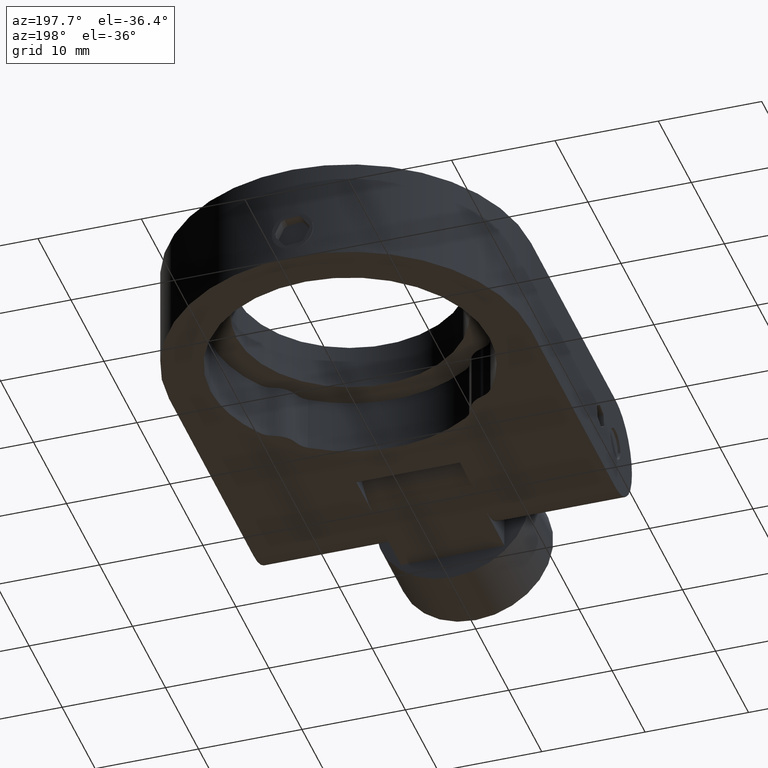
[diagram: clean part render]
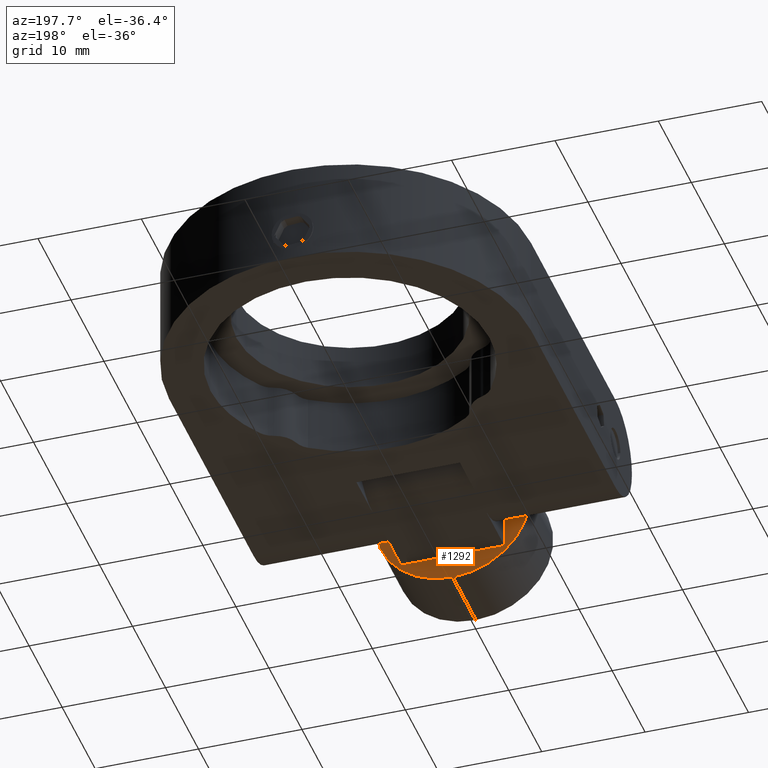
[diagram: same view with one face highlighted and labeled with its STEP entity id]
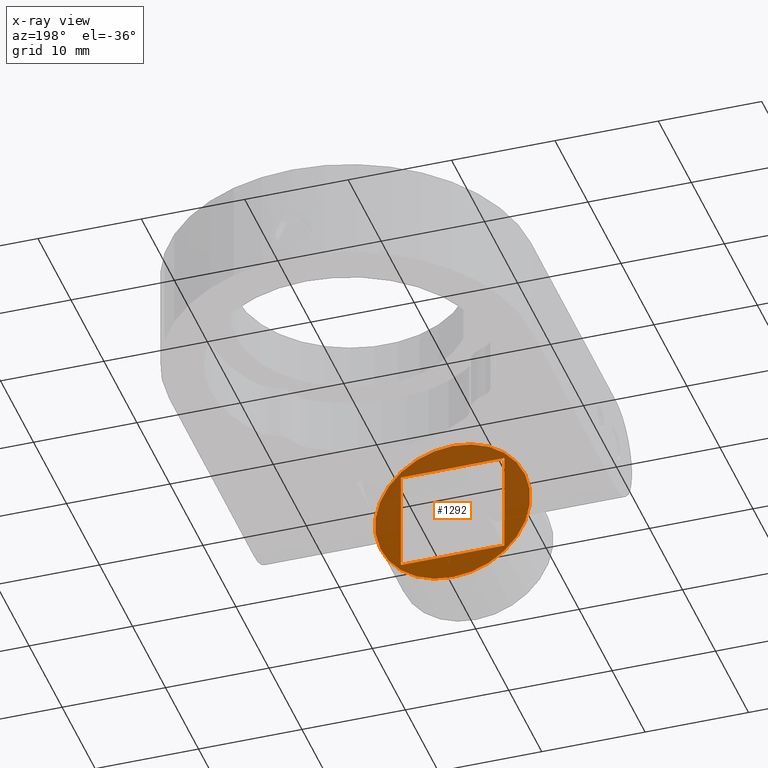
[diagram: x-ray of the same camera — body ghosted, the highlighted face saturated]
A machine part, auxiliary view. The second image highlights one B-rep face of the part: STEP entity #1292.
The next image is the same camera in x-ray: the body ghosted, the highlighted face saturated — about 57% of this face is hidden behind the body in this view.
In plain terms, the highlighted planar face has unit normal (0, 1, 0).
Its self-contained STEP definition (entity closure, byte-faithful):
#102 = FACE_OUTER_BOUND ( 'NONE', #2097, .T. ) ;
#103 = DIRECTION ( 'NONE',  ( 0.0000000000000000000, 1.000000000000000000, 0.0000000000000000000 ) ) ;
#143 = EDGE_CURVE ( 'NONE', #3110, #931, #605, .T. ) ;
#360 = ORIENTED_EDGE ( 'NONE', *, *, #2868, .F. ) ;
#549 = CARTESIAN_POINT ( 'NONE',  ( 5.000000000000000900, 7.000000000000000000, 4.999999999999998200 ) ) ;
#599 = DIRECTION ( 'NONE',  ( 1.000000000000000000, 0.0000000000000000000, -1.734723475976807100E-016 ) ) ;
#605 = LINE ( 'NONE', #2472, #2390 ) ;
#606 = EDGE_LOOP ( 'NONE', ( #2183, #2251, #2723, #360 ) ) ;
#680 = CARTESIAN_POINT ( 'NONE',  ( -4.999999999999999100, 7.000000000000000000, 5.000000000000000000 ) ) ;
#733 = DIRECTION ( 'NONE',  ( 0.0000000000000000000, 0.0000000000000000000, -1.000000000000000000 ) ) ;
#798 = FACE_BOUND ( 'NONE', #606, .T. ) ;
#845 = EDGE_CURVE ( 'NONE', #3424, #2325, #2670, .T. ) ;
#846 = CARTESIAN_POINT ( 'NONE',  ( 5.000000000000000900, 7.000000000000000000, 4.999999999999998200 ) ) ;
#893 = CARTESIAN_POINT ( 'NONE',  ( 0.0000000000000000000, 7.000000000000001800, 7.499999999999998200 ) ) ;
#931 = VERTEX_POINT ( 'NONE', #2168 ) ;
#1013 = DIRECTION ( 'NONE',  ( 0.0000000000000000000, 1.000000000000000000, -2.220446049250313600E-016 ) ) ;
#1046 = LINE ( 'NONE', #680, #3332 ) ;
#1051 = DIRECTION ( 'NONE',  ( -1.000000000000000000, 0.0000000000000000000, 0.0000000000000000000 ) ) ;
#1231 = DIRECTION ( 'NONE',  ( 1.734723475976806800E-016, -0.0000000000000000000, 1.000000000000000000 ) ) ;
#1292 = ADVANCED_FACE ( 'NONE', ( #102, #798 ), #3069, .T. ) ;
#1295 = CARTESIAN_POINT ( 'NONE',  ( 0.0000000000000000000, 7.000000000000000000, -1.554312234475219600E-015 ) ) ;
#1650 = CARTESIAN_POINT ( 'NONE',  ( 5.000000000000000900, 7.000000000000000000, -5.000000000000001800 ) ) ;
#1686 = AXIS2_PLACEMENT_3D ( 'NONE', #2780, #2181, #733 ) ;
#1714 = CARTESIAN_POINT ( 'NONE',  ( -9.184850993605149900E-016, 6.999999999999998200, -7.500000000000002700 ) ) ;
#1865 = DIRECTION ( 'NONE',  ( 0.0000000000000000000, 0.0000000000000000000, -1.000000000000000000 ) ) ;
#1974 = CARTESIAN_POINT ( 'NONE',  ( -5.000000000000000900, 7.000000000000000000, -5.000000000000001800 ) ) ;
#2085 = CIRCLE ( 'NONE', #1686, 7.500000000000000000 ) ;
#2097 = EDGE_LOOP ( 'NONE', ( #2407, #2300 ) ) ;
#2101 = EDGE_CURVE ( 'NONE', #2325, #3424, #2085, .T. ) ;
#2162 = EDGE_CURVE ( 'NONE', #2264, #3110, #3607, .T. ) ;
#2168 = CARTESIAN_POINT ( 'NONE',  ( 5.000000000000000900, 7.000000000000000000, -5.000000000000001800 ) ) ;
#2181 = DIRECTION ( 'NONE',  ( 0.0000000000000000000, 1.000000000000000000, -2.220446049250313600E-016 ) ) ;
#2183 = ORIENTED_EDGE ( 'NONE', *, *, #3004, .F. ) ;
#2251 = ORIENTED_EDGE ( 'NONE', *, *, #143, .F. ) ;
#2264 = VERTEX_POINT ( 'NONE', #2315 ) ;
#2300 = ORIENTED_EDGE ( 'NONE', *, *, #845, .T. ) ;
#2315 = CARTESIAN_POINT ( 'NONE',  ( -4.999999999999999100, 7.000000000000000000, 5.000000000000000000 ) ) ;
#2325 = VERTEX_POINT ( 'NONE', #893 ) ;
#2390 = VECTOR ( 'NONE', #2501, 1000.000000000000000 ) ;
#2406 = LINE ( 'NONE', #1650, #3602 ) ;
#2407 = ORIENTED_EDGE ( 'NONE', *, *, #2101, .T. ) ;
#2472 = CARTESIAN_POINT ( 'NONE',  ( 5.000000000000000900, 7.000000000000000000, 4.999999999999998200 ) ) ;
#2476 = CARTESIAN_POINT ( 'NONE',  ( 0.0000000000000000000, 7.000000000000000000, -1.554312234475219600E-015 ) ) ;
#2501 = DIRECTION ( 'NONE',  ( 0.0000000000000000000, 0.0000000000000000000, -1.000000000000000000 ) ) ;
#2670 = CIRCLE ( 'NONE', #3174, 7.500000000000000000 ) ;
#2723 = ORIENTED_EDGE ( 'NONE', *, *, #2162, .F. ) ;
#2780 = CARTESIAN_POINT ( 'NONE',  ( 0.0000000000000000000, 7.000000000000000000, -1.554312234475219600E-015 ) ) ;
#2790 = VECTOR ( 'NONE', #599, 1000.000000000000000 ) ;
#2868 = EDGE_CURVE ( 'NONE', #3582, #2264, #1046, .T. ) ;
#3004 = EDGE_CURVE ( 'NONE', #931, #3582, #2406, .T. ) ;
#3069 = PLANE ( 'NONE',  #3094 ) ;
#3094 = AXIS2_PLACEMENT_3D ( 'NONE', #1295, #103, #3661 ) ;
#3110 = VERTEX_POINT ( 'NONE', #846 ) ;
#3174 = AXIS2_PLACEMENT_3D ( 'NONE', #2476, #1013, #1865 ) ;
#3332 = VECTOR ( 'NONE', #1231, 1000.000000000000000 ) ;
#3424 = VERTEX_POINT ( 'NONE', #1714 ) ;
#3582 = VERTEX_POINT ( 'NONE', #1974 ) ;
#3602 = VECTOR ( 'NONE', #1051, 1000.000000000000000 ) ;
#3607 = LINE ( 'NONE', #549, #2790 ) ;
#3661 = DIRECTION ( 'NONE',  ( 0.0000000000000000000, 0.0000000000000000000, -1.000000000000000000 ) ) ;